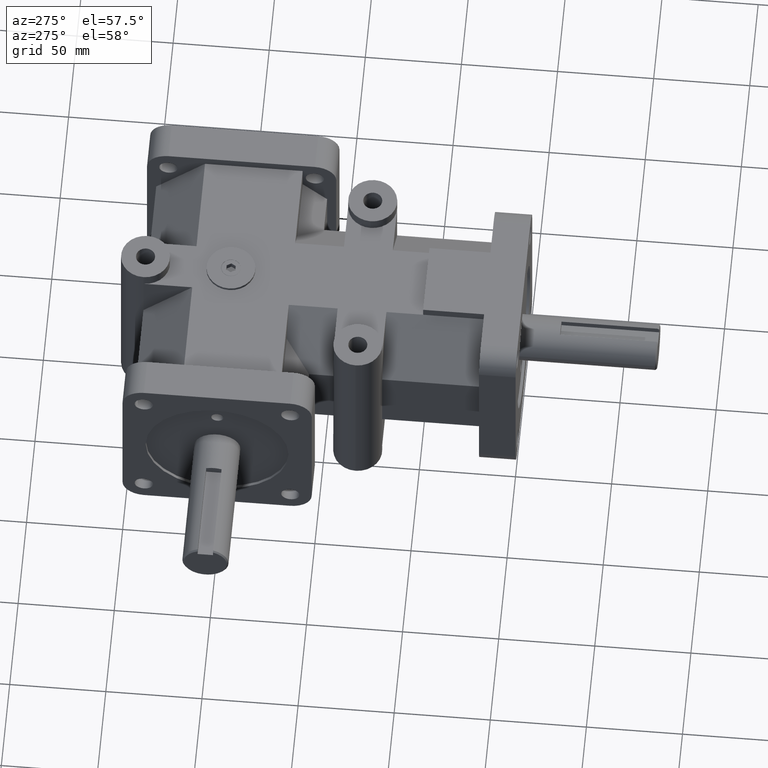
[diagram: clean part render]
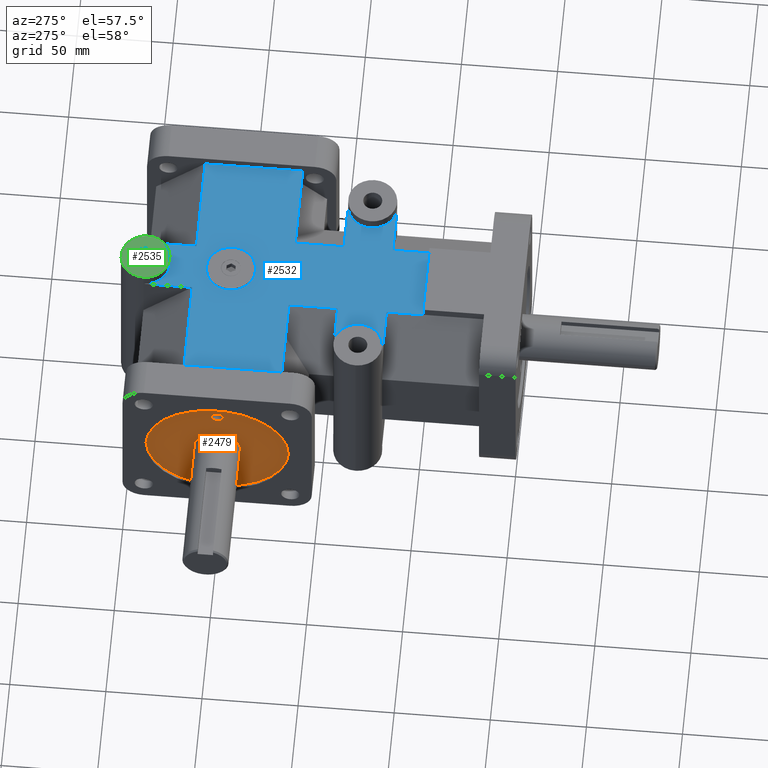
[diagram: same view with three faces highlighted in distinct colors, each labeled with its STEP entity id]
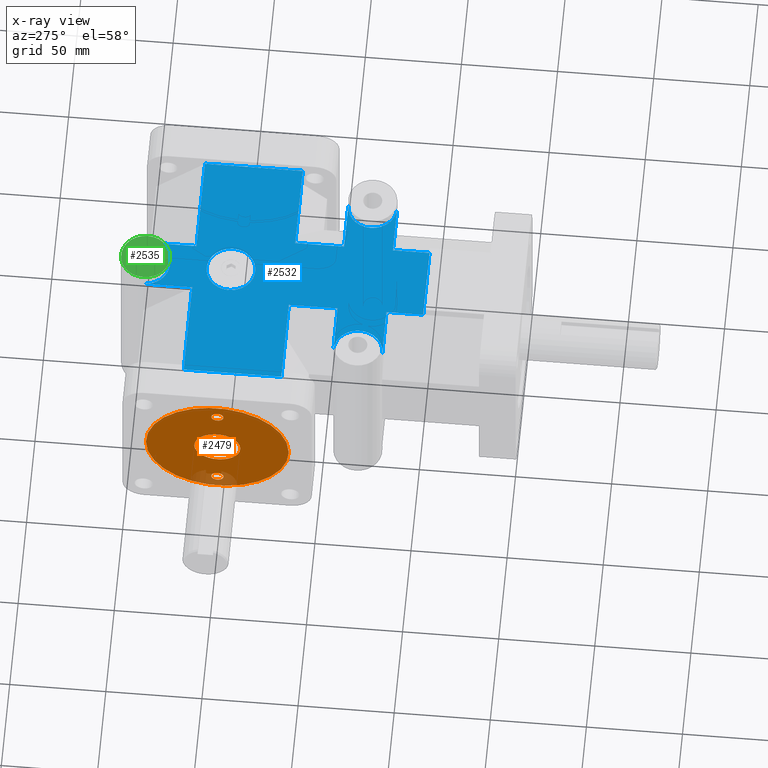
[diagram: x-ray of the same camera — body ghosted, the three highlighted faces saturated]
A machine part, auxiliary view with three faces highlighted in distinct colors.
The next image is the same camera in x-ray (body ghosted, the three faces saturated) — at least one of them is partly hidden behind the body in this view.
Their STEP definitions:

[orange] entity #2479 — the highlighted planar face has unit normal (1, -0, -0).
#15=FACE_BOUND('',#395,.T.);
#16=FACE_BOUND('',#396,.T.);
#17=FACE_BOUND('',#397,.T.);
#120=CIRCLE('',#2622,3.175);
#122=CIRCLE('',#2626,3.175);
#129=CIRCLE('',#2639,37.1602);
#141=CIRCLE('',#2665,12.);
#249=FACE_OUTER_BOUND('',#394,.T.);
#394=EDGE_LOOP('',(#1791));
#395=EDGE_LOOP('',(#1792));
#396=EDGE_LOOP('',(#1793));
#397=EDGE_LOOP('',(#1794));
#1091=VERTEX_POINT('',#3693);
#1093=VERTEX_POINT('',#3700);
#1100=VERTEX_POINT('',#3723);
#1128=VERTEX_POINT('',#3813);
#1326=EDGE_CURVE('',#1091,#1091,#120,.T.);
#1329=EDGE_CURVE('',#1093,#1093,#122,.T.);
#1340=EDGE_CURVE('',#1100,#1100,#129,.T.);
#1380=EDGE_CURVE('',#1128,#1128,#141,.T.);
#1791=ORIENTED_EDGE('',*,*,#1340,.T.);
#1792=ORIENTED_EDGE('',*,*,#1380,.T.);
#1793=ORIENTED_EDGE('',*,*,#1326,.T.);
#1794=ORIENTED_EDGE('',*,*,#1329,.T.);
#2367=PLANE('',#2670);
#2479=ADVANCED_FACE('',(#249,#15,#16,#17),#2367,.F.);
#2622=AXIS2_PLACEMENT_3D('',#3694,#2929,#2930);
#2626=AXIS2_PLACEMENT_3D('',#3701,#2938,#2939);
#2639=AXIS2_PLACEMENT_3D('',#3725,#2968,#2969);
#2665=AXIS2_PLACEMENT_3D('',#3815,#3044,#3045);
#2670=AXIS2_PLACEMENT_3D('',#3820,#3054,#3055);
#2929=DIRECTION('center_axis',(1.,-4.56193326618001E-32,-2.28096663309E-32));
#2930=DIRECTION('ref_axis',(4.56193326618001E-32,1.,-1.04056175625399E-63));
#2938=DIRECTION('center_axis',(1.,-4.56193326618001E-32,-2.28096663309E-32));
#2939=DIRECTION('ref_axis',(4.56193326618001E-32,1.,-1.04056175625399E-63));
#2968=DIRECTION('center_axis',(-1.,0.,0.));
#2969=DIRECTION('ref_axis',(0.,1.,0.));
#3044=DIRECTION('center_axis',(1.,-4.56193326618001E-32,-2.28096663309E-32));
#3045=DIRECTION('ref_axis',(-4.56193326618001E-32,-1.,-8.73288358196352E-48));
#3054=DIRECTION('center_axis',(1.,-4.56193326618001E-32,-2.28096663309E-32));
#3055=DIRECTION('ref_axis',(-4.56193326618001E-32,-1.,0.));
#3693=CARTESIAN_POINT('',(-81.026,149.225,-28.448));
#3694=CARTESIAN_POINT('Origin',(-81.026,152.4,-28.448));
#3700=CARTESIAN_POINT('',(-81.026,149.225,28.448));
#3701=CARTESIAN_POINT('Origin',(-81.026,152.4,28.448));
#3723=CARTESIAN_POINT('',(-81.026,115.2398,-4.55081199856755E-15));
#3725=CARTESIAN_POINT('Origin',(-81.026,152.4,0.));
#3813=CARTESIAN_POINT('',(-81.026,164.4,-1.46957615897682E-15));
#3815=CARTESIAN_POINT('Origin',(-81.026,152.4,0.));
#3820=CARTESIAN_POINT('Origin',(-81.026,155.436454545455,-2.02549525250398E-15));

[blue] entity #2532 — the highlighted planar face has unit normal (0, 0, 1).
#42=FACE_BOUND('',#475,.T.);
#184=CIRCLE('',#2745,12.7);
#205=CIRCLE('',#2785,12.7);
#206=CIRCLE('',#2786,12.7);
#207=CIRCLE('',#2787,12.7);
#208=CIRCLE('',#2788,12.7);
#302=FACE_OUTER_BOUND('',#474,.T.);
#474=EDGE_LOOP('',(#2052,#2053,#2054,#2055,#2056,#2057,#2058,#2059,#2060,
#2061,#2062,#2063,#2064,#2065,#2066,#2067,#2068,#2069,#2070,#2071,#2072));
#475=EDGE_LOOP('',(#2073));
#575=LINE('',#3655,#825);
#580=LINE('',#3665,#830);
#651=LINE('',#3945,#901);
#676=LINE('',#4003,#926);
#714=LINE('',#4148,#964);
#715=LINE('',#4149,#965);
#716=LINE('',#4151,#966);
#717=LINE('',#4153,#967);
#718=LINE('',#4157,#968);
#719=LINE('',#4158,#969);
#720=LINE('',#4160,#970);
#721=LINE('',#4162,#971);
#722=LINE('',#4166,#972);
#723=LINE('',#4168,#973);
#724=LINE('',#4170,#974);
#725=LINE('',#4172,#975);
#726=LINE('',#4173,#976);
#825=VECTOR('',#2891,1.);
#830=VECTOR('',#2898,1.);
#901=VECTOR('',#3169,1.);
#926=VECTOR('',#3222,1.);
#964=VECTOR('',#3384,1.);
#965=VECTOR('',#3385,1.);
#966=VECTOR('',#3386,1.);
#967=VECTOR('',#3387,1.);
#968=VECTOR('',#3390,1.);
#969=VECTOR('',#3391,1.);
#970=VECTOR('',#3392,1.);
#971=VECTOR('',#3393,1.);
#972=VECTOR('',#3396,1.);
#973=VECTOR('',#3397,1.);
#974=VECTOR('',#3398,1.);
#975=VECTOR('',#3399,1.);
#976=VECTOR('',#3400,1.);
#1077=VERTEX_POINT('',#3652);
#1078=VERTEX_POINT('',#3654);
#1080=VERTEX_POINT('',#3659);
#1082=VERTEX_POINT('',#3663);
#1179=VERTEX_POINT('',#3943);
#1197=VERTEX_POINT('',#3997);
#1219=VERTEX_POINT('',#4065);
#1240=VERTEX_POINT('',#4142);
#1241=VERTEX_POINT('',#4143);
#1242=VERTEX_POINT('',#4145);
#1243=VERTEX_POINT('',#4147);
#1244=VERTEX_POINT('',#4150);
#1245=VERTEX_POINT('',#4152);
#1246=VERTEX_POINT('',#4154);
#1247=VERTEX_POINT('',#4156);
#1248=VERTEX_POINT('',#4159);
#1249=VERTEX_POINT('',#4161);
#1250=VERTEX_POINT('',#4163);
#1251=VERTEX_POINT('',#4165);
#1252=VERTEX_POINT('',#4167);
#1253=VERTEX_POINT('',#4169);
#1254=VERTEX_POINT('',#4171);
#1308=EDGE_CURVE('',#1077,#1078,#575,.T.);
#1313=EDGE_CURVE('',#1082,#1080,#580,.T.);
#1440=EDGE_CURVE('',#1082,#1179,#651,.T.);
#1473=EDGE_CURVE('',#1197,#1078,#676,.T.);
#1504=EDGE_CURVE('',#1219,#1219,#184,.T.);
#1540=EDGE_CURVE('',#1240,#1241,#205,.T.);
#1541=EDGE_CURVE('',#1241,#1242,#206,.T.);
#1542=EDGE_CURVE('',#1243,#1242,#714,.T.);
#1543=EDGE_CURVE('',#1080,#1243,#715,.T.);
#1544=EDGE_CURVE('',#1244,#1179,#716,.T.);
#1545=EDGE_CURVE('',#1245,#1244,#717,.T.);
#1546=EDGE_CURVE('',#1245,#1246,#207,.T.);
#1547=EDGE_CURVE('',#1247,#1246,#718,.T.);
#1548=EDGE_CURVE('',#1197,#1247,#719,.T.);
#1549=EDGE_CURVE('',#1248,#1077,#720,.T.);
#1550=EDGE_CURVE('',#1249,#1248,#721,.T.);
#1551=EDGE_CURVE('',#1249,#1250,#208,.T.);
#1552=EDGE_CURVE('',#1251,#1250,#722,.T.);
#1553=EDGE_CURVE('',#1252,#1251,#723,.T.);
#1554=EDGE_CURVE('',#1252,#1253,#724,.T.);
#1555=EDGE_CURVE('',#1254,#1253,#725,.T.);
#1556=EDGE_CURVE('',#1240,#1254,#726,.T.);
#2052=ORIENTED_EDGE('',*,*,#1540,.T.);
#2053=ORIENTED_EDGE('',*,*,#1541,.T.);
#2054=ORIENTED_EDGE('',*,*,#1542,.F.);
#2055=ORIENTED_EDGE('',*,*,#1543,.F.);
#2056=ORIENTED_EDGE('',*,*,#1313,.F.);
#2057=ORIENTED_EDGE('',*,*,#1440,.T.);
#2058=ORIENTED_EDGE('',*,*,#1544,.F.);
#2059=ORIENTED_EDGE('',*,*,#1545,.F.);
#2060=ORIENTED_EDGE('',*,*,#1546,.T.);
#2061=ORIENTED_EDGE('',*,*,#1547,.F.);
#2062=ORIENTED_EDGE('',*,*,#1548,.F.);
#2063=ORIENTED_EDGE('',*,*,#1473,.T.);
#2064=ORIENTED_EDGE('',*,*,#1308,.F.);
#2065=ORIENTED_EDGE('',*,*,#1549,.F.);
#2066=ORIENTED_EDGE('',*,*,#1550,.F.);
#2067=ORIENTED_EDGE('',*,*,#1551,.T.);
#2068=ORIENTED_EDGE('',*,*,#1552,.F.);
#2069=ORIENTED_EDGE('',*,*,#1553,.F.);
#2070=ORIENTED_EDGE('',*,*,#1554,.T.);
#2071=ORIENTED_EDGE('',*,*,#1555,.F.);
#2072=ORIENTED_EDGE('',*,*,#1556,.F.);
#2073=ORIENTED_EDGE('',*,*,#1504,.T.);
#2390=PLANE('',#2784);
#2532=ADVANCED_FACE('',(#302,#42),#2390,.T.);
#2745=AXIS2_PLACEMENT_3D('',#4067,#3285,#3286);
#2784=AXIS2_PLACEMENT_3D('',#4141,#3378,#3379);
#2785=AXIS2_PLACEMENT_3D('',#4144,#3380,#3381);
#2786=AXIS2_PLACEMENT_3D('',#4146,#3382,#3383);
#2787=AXIS2_PLACEMENT_3D('',#4155,#3388,#3389);
#2788=AXIS2_PLACEMENT_3D('',#4164,#3394,#3395);
#2891=DIRECTION('',(-1.,0.,0.));
#2898=DIRECTION('',(-1.,0.,0.));
#3169=DIRECTION('',(0.,1.,0.));
#3222=DIRECTION('',(0.,-1.,0.));
#3285=DIRECTION('center_axis',(0.,0.,-1.));
#3286=DIRECTION('ref_axis',(1.,0.,0.));
#3378=DIRECTION('center_axis',(0.,0.,1.));
#3379=DIRECTION('ref_axis',(-1.,0.,0.));
#3380=DIRECTION('center_axis',(0.,0.,-1.));
#3381=DIRECTION('ref_axis',(1.,0.,0.));
#3382=DIRECTION('center_axis',(0.,0.,-1.));
#3383=DIRECTION('ref_axis',(1.,0.,0.));
#3384=DIRECTION('',(1.,0.,0.));
#3385=DIRECTION('',(0.,-1.,0.));
#3386=DIRECTION('',(1.,0.,0.));
#3387=DIRECTION('',(0.,-1.,0.));
#3388=DIRECTION('center_axis',(0.,0.,-1.));
#3389=DIRECTION('ref_axis',(1.,0.,0.));
#3390=DIRECTION('',(0.,1.,0.));
#3391=DIRECTION('',(1.,0.,0.));
#3392=DIRECTION('',(0.,1.,0.));
#3393=DIRECTION('',(1.,0.,0.));
#3394=DIRECTION('center_axis',(0.,0.,-1.));
#3395=DIRECTION('ref_axis',(1.,0.,0.));
#3396=DIRECTION('',(-1.,0.,0.));
#3397=DIRECTION('',(0.,1.,0.));
#3398=DIRECTION('',(1.,0.,0.));
#3399=DIRECTION('',(0.,-1.,0.));
#3400=DIRECTION('',(-1.,0.,0.));
#3652=CARTESIAN_POINT('',(-19.05,120.65,44.45));
#3654=CARTESIAN_POINT('',(-63.5,120.65,44.45));
#3655=CARTESIAN_POINT('',(-15.875,120.65,44.45));
#3659=CARTESIAN_POINT('',(19.05,120.65,44.45));
#3663=CARTESIAN_POINT('',(63.5,120.65,44.45));
#3665=CARTESIAN_POINT('',(11.1125,120.65,44.45));
#3943=CARTESIAN_POINT('',(63.5,171.45,44.45));
#3945=CARTESIAN_POINT('',(63.5,153.135670731707,44.45));
#3997=CARTESIAN_POINT('',(-63.5,171.45,44.45));
#4003=CARTESIAN_POINT('',(-63.5,108.685670731707,44.45));
#4065=CARTESIAN_POINT('',(-12.7,152.4,44.45));
#4067=CARTESIAN_POINT('Origin',(0.,152.4,44.45));
#4141=CARTESIAN_POINT('Origin',(1.28772021275596E-14,109.421341463415,44.45));
#4142=CARTESIAN_POINT('',(44.45,69.85,44.45));
#4143=CARTESIAN_POINT('',(31.75,82.55,44.45));
#4144=CARTESIAN_POINT('Origin',(44.45,82.55,44.45));
#4145=CARTESIAN_POINT('',(44.4500000000001,95.25,44.45));
#4146=CARTESIAN_POINT('Origin',(44.45,82.55,44.45));
#4147=CARTESIAN_POINT('',(19.05,95.25,44.45));
#4148=CARTESIAN_POINT('',(12.7,95.25,44.45));
#4149=CARTESIAN_POINT('',(19.05,64.2356707317073,44.45));
#4150=CARTESIAN_POINT('',(12.7,171.45,44.45));
#4151=CARTESIAN_POINT('',(31.75,171.45,44.45));
#4152=CARTESIAN_POINT('',(12.7,196.85,44.45));
#4153=CARTESIAN_POINT('',(12.7,196.85,44.45));
#4154=CARTESIAN_POINT('',(-12.7,196.85,44.45));
#4155=CARTESIAN_POINT('Origin',(0.,196.85,44.45));
#4156=CARTESIAN_POINT('',(-12.7,171.45,44.45));
#4157=CARTESIAN_POINT('',(-12.7,196.85,44.45));
#4158=CARTESIAN_POINT('',(31.75,171.45,44.45));
#4159=CARTESIAN_POINT('',(-19.05,95.25,44.45));
#4160=CARTESIAN_POINT('',(-19.05,108.685670731707,44.45));
#4161=CARTESIAN_POINT('',(-44.45,95.25,44.45));
#4162=CARTESIAN_POINT('',(-44.45,95.25,44.45));
#4163=CARTESIAN_POINT('',(-44.45,69.85,44.45));
#4164=CARTESIAN_POINT('Origin',(-44.45,82.55,44.45));
#4165=CARTESIAN_POINT('',(-19.05,69.85,44.45));
#4166=CARTESIAN_POINT('',(-44.45,69.85,44.45));
#4167=CARTESIAN_POINT('',(-19.05,50.8,44.45));
#4168=CARTESIAN_POINT('',(-19.05,108.685670731707,44.45));
#4169=CARTESIAN_POINT('',(19.05,50.8,44.45));
#4170=CARTESIAN_POINT('',(9.52500000000001,50.8,44.45));
#4171=CARTESIAN_POINT('',(19.05,69.85,44.45));
#4172=CARTESIAN_POINT('',(19.05,64.2356707317073,44.45));
#4173=CARTESIAN_POINT('',(-44.45,69.85,44.45));

[green] entity #2535 — the highlighted planar face has unit normal (0, 0, 1).
#45=FACE_BOUND('',#481,.T.);
#202=CIRCLE('',#2779,4.953);
#211=CIRCLE('',#2794,12.7);
#305=FACE_OUTER_BOUND('',#480,.T.);
#480=EDGE_LOOP('',(#2078));
#481=EDGE_LOOP('',(#2079));
#1237=VERTEX_POINT('',#4132);
#1257=VERTEX_POINT('',#4181);
#1537=EDGE_CURVE('',#1237,#1237,#202,.T.);
#1559=EDGE_CURVE('',#1257,#1257,#211,.T.);
#2078=ORIENTED_EDGE('',*,*,#1559,.F.);
#2079=ORIENTED_EDGE('',*,*,#1537,.T.);
#2393=PLANE('',#2793);
#2535=ADVANCED_FACE('',(#305,#45),#2393,.T.);
#2779=AXIS2_PLACEMENT_3D('',#4134,#3368,#3369);
#2793=AXIS2_PLACEMENT_3D('',#4180,#3409,#3410);
#2794=AXIS2_PLACEMENT_3D('',#4182,#3411,#3412);
#3368=DIRECTION('center_axis',(0.,0.,-1.));
#3369=DIRECTION('ref_axis',(1.,0.,0.));
#3409=DIRECTION('center_axis',(0.,0.,1.));
#3410=DIRECTION('ref_axis',(-1.,0.,0.));
#3411=DIRECTION('center_axis',(0.,0.,-1.));
#3412=DIRECTION('ref_axis',(1.,0.,0.));
#4132=CARTESIAN_POINT('',(-4.953,196.85,50.8));
#4134=CARTESIAN_POINT('Origin',(0.,196.85,50.8));
#4180=CARTESIAN_POINT('Origin',(1.15454545454545,196.85,50.8));
#4181=CARTESIAN_POINT('',(-12.7,196.85,50.8));
#4182=CARTESIAN_POINT('Origin',(0.,196.85,50.8));